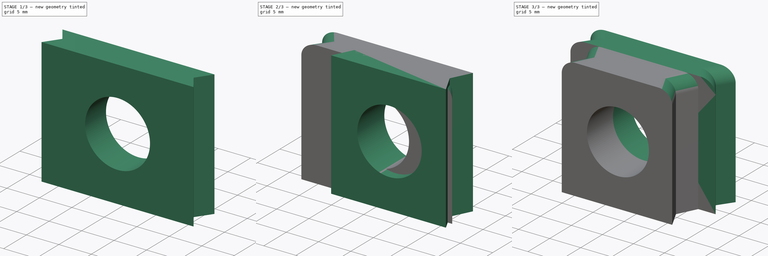
[diagram: build sequence overview — one tinted view per stage of 3, left to right]
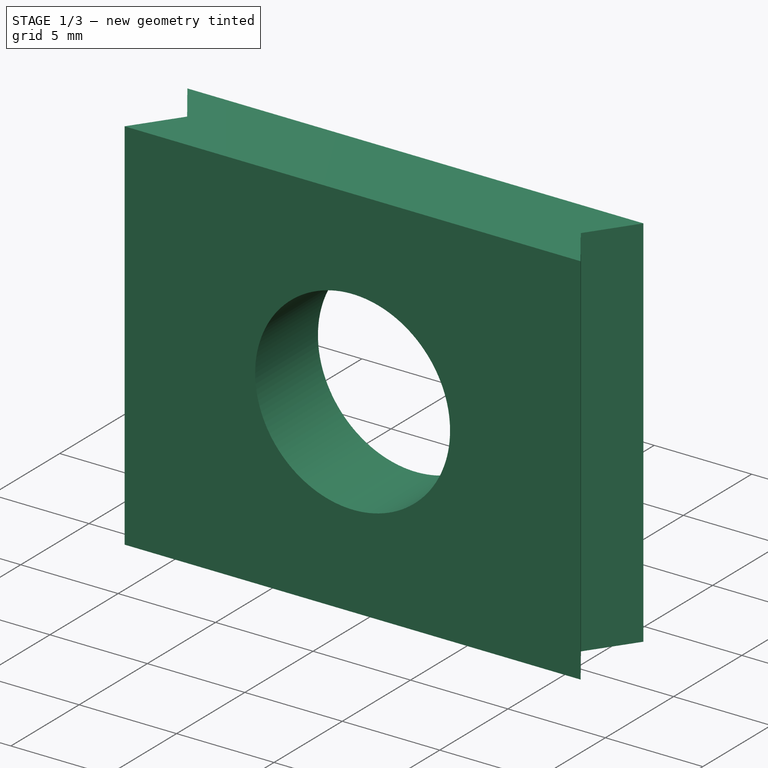
[diagram: stage 1 of 3 — iso view after this stage's code; geometry added in this stage tinted green]
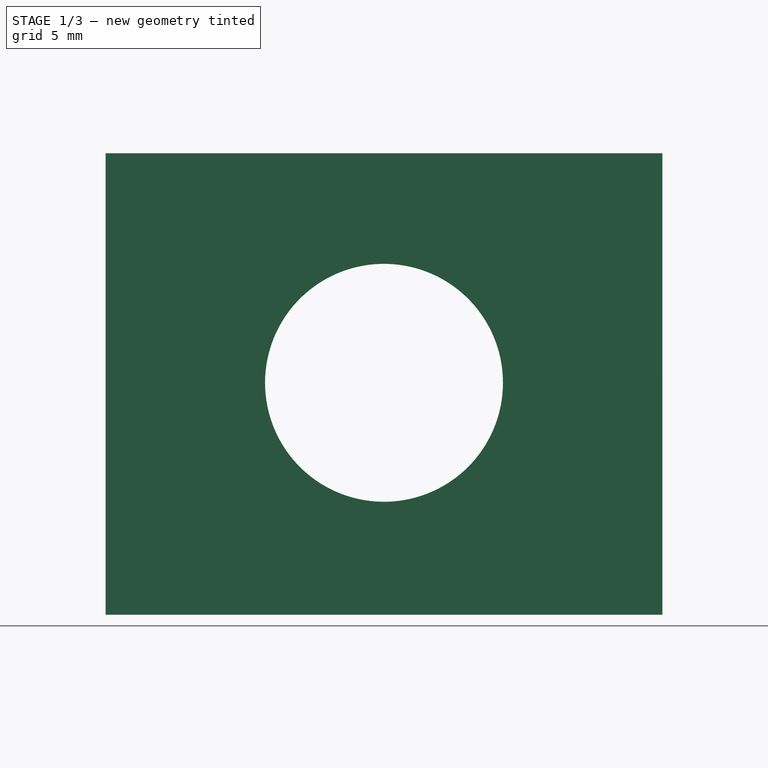
[diagram: stage 1 of 3 — front view after this stage's code; geometry added in this stage tinted green]
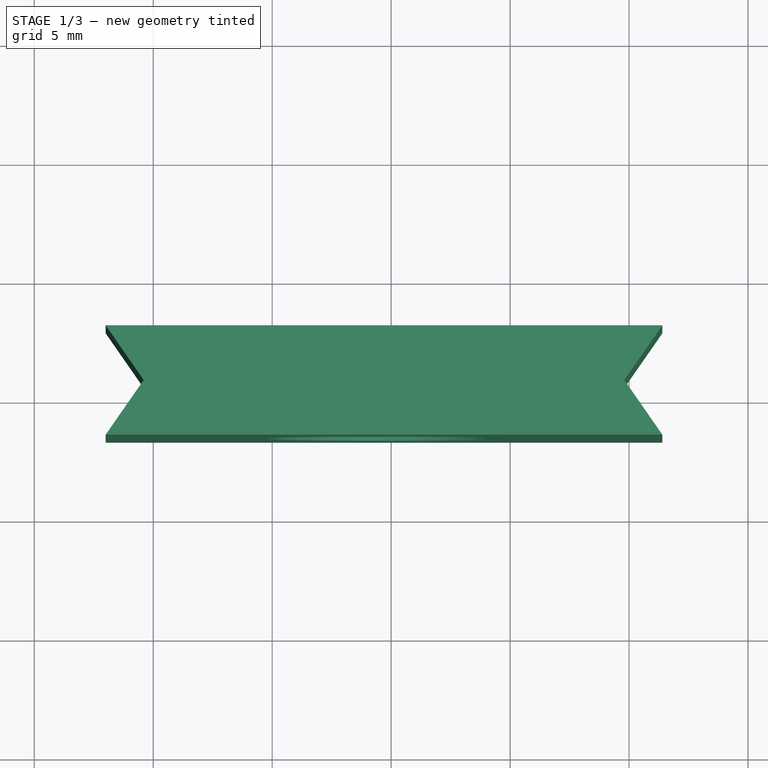
[diagram: stage 1 of 3 — top view after this stage's code; geometry added in this stage tinted green]
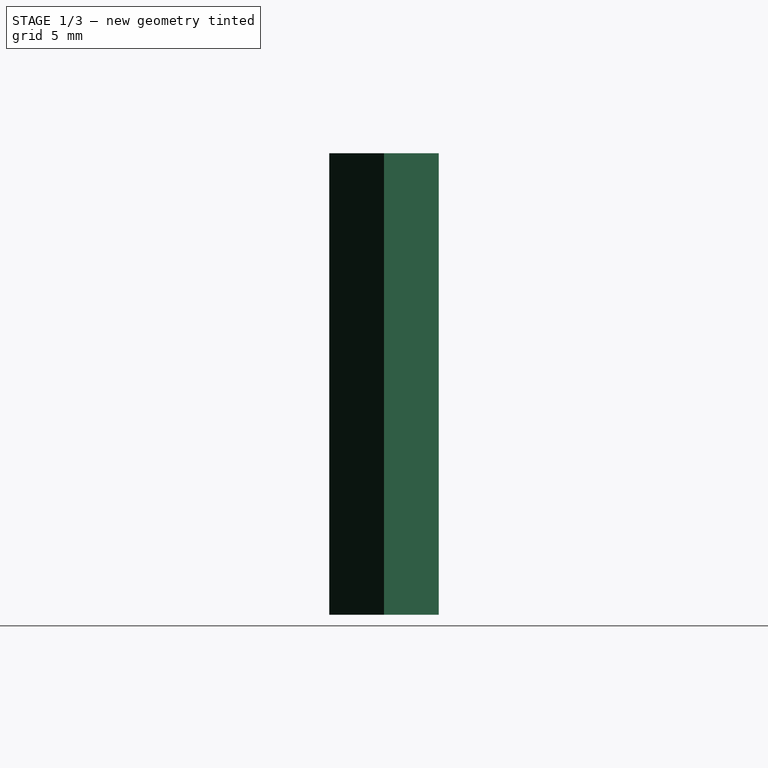
[diagram: stage 1 of 3 — right view after this stage's code; geometry added in this stage tinted green]
FCSTD DOCUMENT  (FreeCAD 0.20R29603 (Git))
Label: Connector Waakoshi Open Formicarium
License: All rights reserved
objects: Sketcher::SketchObject×4, PartDesign::Pad×2, PartDesign::Pocket×2, PartDesign::Fillet×2, PartDesign::Body×2, Part::Compound×1
note: 19 computed .brp shape members not serialized (recipe doc carries the construction recipe); baked Part::Feature solids carry a one-line shape summary decoded from their .brp

FEATURE [PartDesign::Body] Body001  label="Open Formicarium"
  Group = -> [Sketch019,Pad003,Sketch,Pocket,Fillet]
  Origin = -> Origin001
  Tip = -> Fillet
FEATURE [Sketcher::SketchObject] Sketch021
  FullyConstrained = true
  MapMode = 5
  Placement = pos=(0,0,20) rot=(0,0,1;0rad)
  sketch-geometry (6):
    g0: LineSegment StartX=-27 StartY=-17.07 StartZ=0 EndX=-3.6 EndY=-17.07 EndZ=0
    g1: LineSegment StartX=-3.6 StartY=-17.07 StartZ=0 EndX=-5.2 EndY=-19.37 EndZ=0
    g2: LineSegment StartX=-25.4 StartY=-19.37 StartZ=0 EndX=-27 EndY=-17.07 EndZ=0
    g3: LineSegment StartX=-25.4 StartY=-19.37 StartZ=0 EndX=-27 EndY=-21.67 EndZ=0
    g4: LineSegment StartX=-27 StartY=-21.67 StartZ=0 EndX=-3.6 EndY=-21.67 EndZ=0
    g5: LineSegment StartX=-3.6 StartY=-21.67 StartZ=0 EndX=-5.2 EndY=-19.37 EndZ=0
  constraints (18):
    c: Coincident(g0,g1)
    c: Coincident(g2,g0)
    c: Horizontal(g0)
    c: DistanceX(g0,g0) = 23.4  'X'
    c: DistanceX(g2,g1) = 20.2
    c: Equal(g2,g1)
    c: DistanceY(g2,g0) = 2.3  'Y'
    c: Horizontal(g1,g2)
    c: Coincident(g3,g4)
    c: Coincident(g4,g5)
    c: Coincident(g2,g3)
    c: Coincident(g5,g1)
    c: Equal(g2,g5)
    c: Equal(g0,g4)
    c: Equal(g3,g5)
    c: Horizontal(g4)
    c: DistanceY(g0,g-1) = 17.07
    c: DistanceX(g0,g-1) = 3.6
FEATURE [PartDesign::Pad] Pad004
  AllowMultiFace = false
  Direction = (0,0,1)
  Length = 19.4
  Length2 = 100
  Placement = pos=(0,0,20) rot=(0,0,1;0rad)
  Profile = -> Sketch021
  Reversed = true
  Type = 0
FEATURE [Sketcher::SketchObject] Sketch020
  ExternalGeometry = -> [Pad004]
  FullyConstrained = true
  MapMode = 5
  Placement = pos=(0,-21.67,20) rot=(1,0,0;1.5708rad)
  Support = -> [Pad004]
  expr: Constraints[0] = 5
  expr: Constraints[2] = <<Sketch021>>.Constraints.X / 2
  sketch-geometry (1):
    g0: Circle CenterX=-15.3 CenterY=-9.65 CenterZ=0 NormalX=0 NormalY=0 NormalZ=1 AngleXU=0 Radius=5
  constraints (4):
    c: Radius(g0) = 5
    c: DistanceY(g-3,g0) = 9.75
    c: DistanceX(g0,g-3) = 11.7
    c: DistanceX(g-3,g-3) = 23.4
FEATURE [PartDesign::Pocket] Pocket001
  AllowMultiFace = false
  BaseFeature = -> Pad004
  Direction = (0,1,-2e-16)
  Length = 5
  Length2 = 100
  Placement = pos=(0,0,20) rot=(0,0,1;0rad)
  Profile = -> Sketch020
  Type = 1
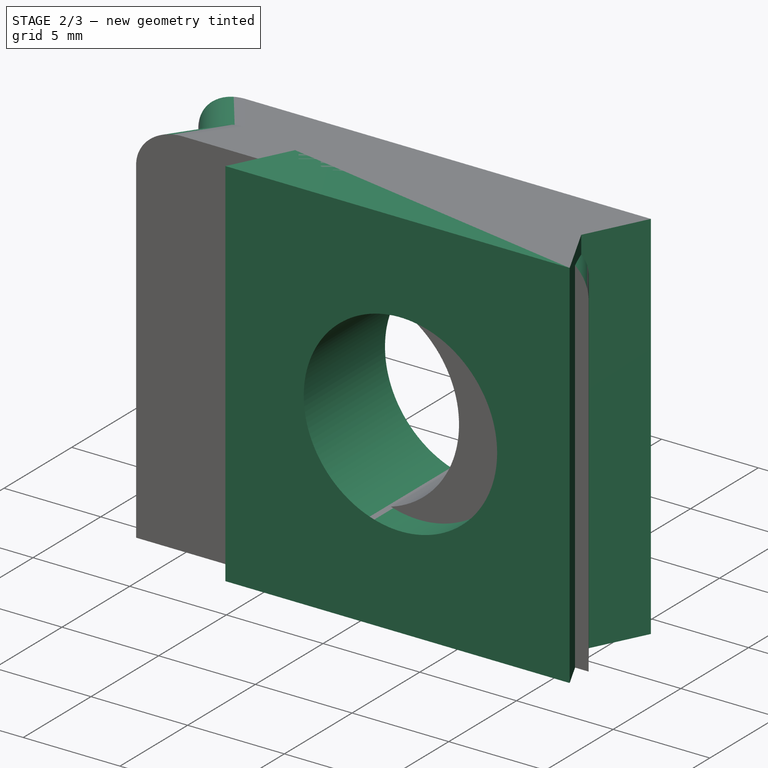
[diagram: stage 2 of 3 — iso view after this stage's code; geometry added in this stage tinted green]
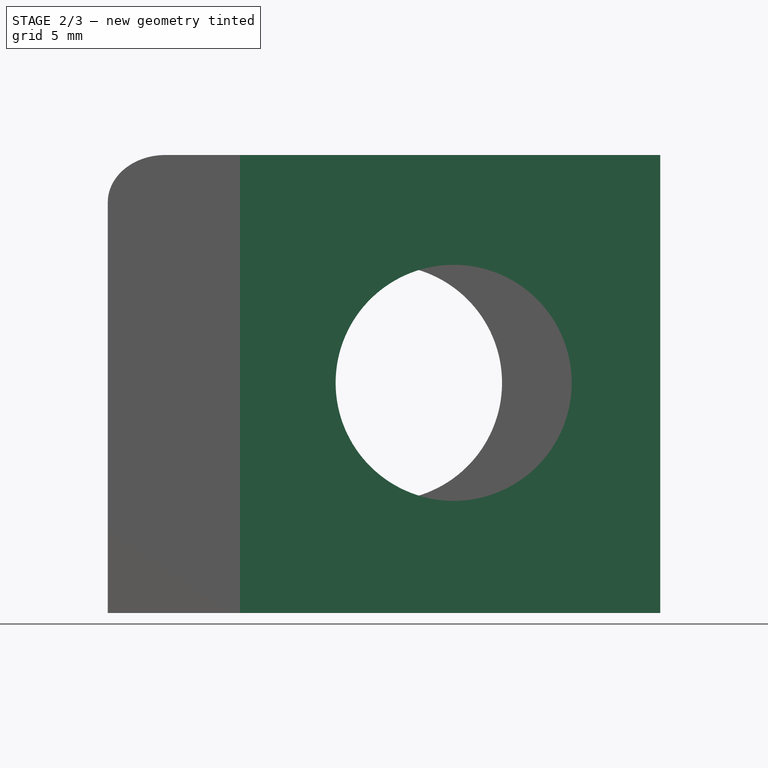
[diagram: stage 2 of 3 — front view after this stage's code; geometry added in this stage tinted green]
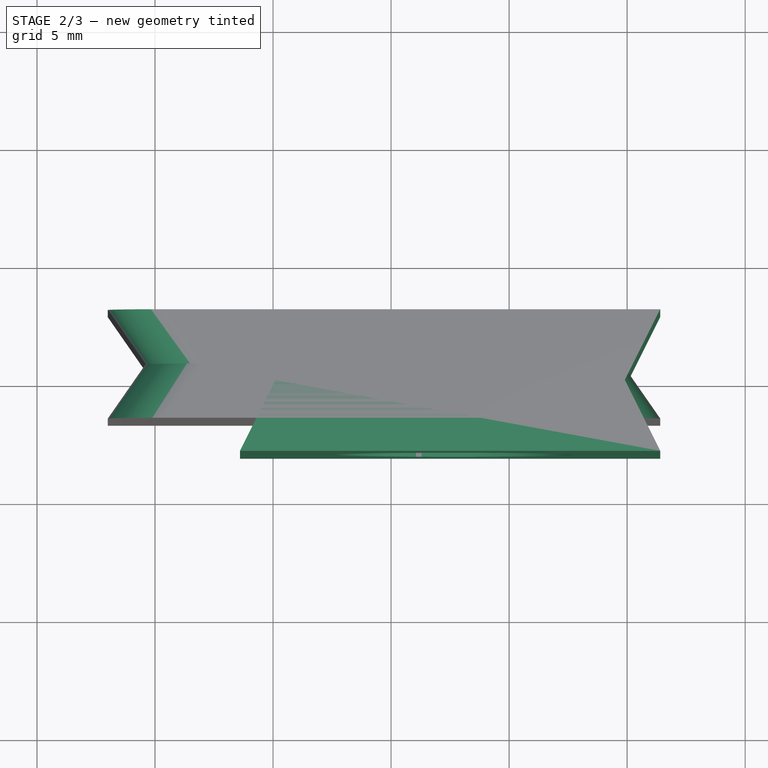
[diagram: stage 2 of 3 — top view after this stage's code; geometry added in this stage tinted green]
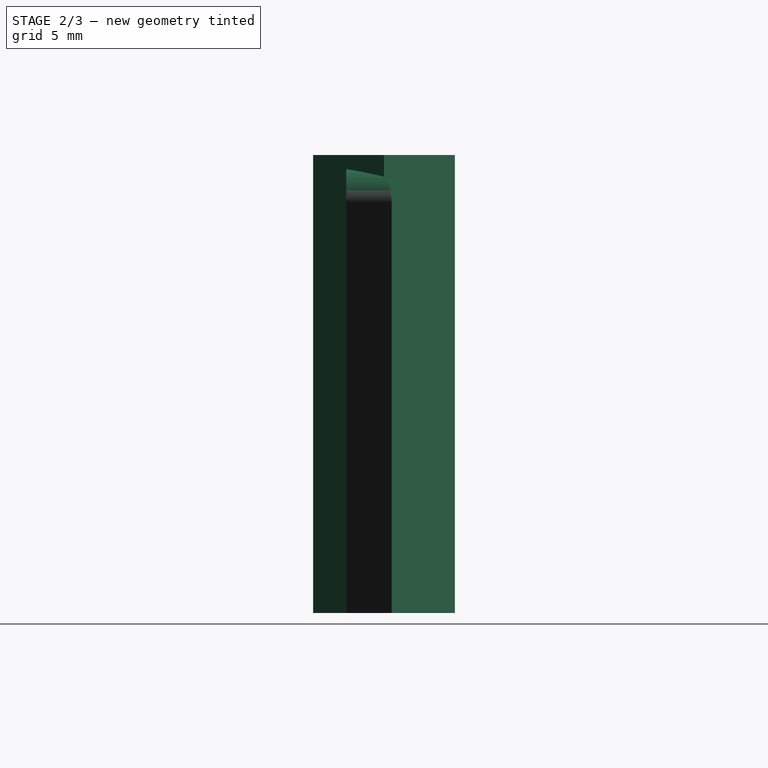
[diagram: stage 2 of 3 — right view after this stage's code; geometry added in this stage tinted green]
FEATURE [Sketcher::SketchObject] Sketch019
  FullyConstrained = true
  MapMode = 5
  Placement = pos=(0,0,20) rot=(0,0,1;0rad)
  sketch-geometry (6):
    g0: LineSegment StartX=-21.4 StartY=-17.07 StartZ=0 EndX=-3.6 EndY=-17.07 EndZ=0
    g1: LineSegment StartX=-3.6 StartY=-17.07 StartZ=0 EndX=-5.1 EndY=-20.07 EndZ=0
    g2: LineSegment StartX=-19.9 StartY=-20.07 StartZ=0 EndX=-21.4 EndY=-17.07 EndZ=0
    g3: LineSegment StartX=-19.9 StartY=-20.07 StartZ=0 EndX=-21.4 EndY=-23.07 EndZ=0
    g4: LineSegment StartX=-21.4 StartY=-23.07 StartZ=0 EndX=-3.6 EndY=-23.07 EndZ=0
    g5: LineSegment StartX=-3.6 StartY=-23.07 StartZ=0 EndX=-5.1 EndY=-20.07 EndZ=0
  constraints (18):
    c: Coincident(g0,g1)
    c: Coincident(g2,g0)
    c: Horizontal(g0)
    c: DistanceX(g0,g0) = 17.8  'X'
    c: DistanceX(g2,g1) = 14.8
    c: Equal(g2,g1)
    c: DistanceY(g2,g0) = 3  'Y'
    c: Horizontal(g1,g2)
    c: Coincident(g3,g4)
    c: Coincident(g4,g5)
    c: Coincident(g2,g3)
    c: Coincident(g5,g1)
    c: Equal(g2,g5)
    c: Equal(g0,g4)
    c: Equal(g3,g5)
    c: Horizontal(g4)
    c: DistanceY(g0,g-1) = 17.07
    c: DistanceX(g0,g-1) = 3.6
FEATURE [PartDesign::Pad] Pad003
  AllowMultiFace = false
  Direction = (0,0,1)
  Length = 19.4
  Length2 = 100
  Placement = pos=(0,0,20) rot=(0,0,1;0rad)
  Profile = -> Sketch019
  Reversed = true
  Type = 0
FEATURE [Sketcher::SketchObject] Sketch
  ExternalGeometry = -> [Pad003]
  FullyConstrained = true
  MapMode = 5
  Placement = pos=(0,-23.07,20) rot=(1,0,0;1.5708rad)
  Support = -> [Pad003]
  sketch-geometry (1):
    g0: Circle CenterX=-12.35 CenterY=-9.65 CenterZ=0 NormalX=0 NormalY=0 NormalZ=1 AngleXU=0 Radius=5
  constraints (4):
    c: Radius(g0) = 5
    c: DistanceY(g-3,g0) = 9.75
    c: DistanceX(g0,g-3) = 8.75
    c: DistanceX(g-3,g-3) = 17.8
FEATURE [PartDesign::Pocket] Pocket
  AllowMultiFace = false
  BaseFeature = -> Pad003
  Direction = (0,1,-2e-16)
  Length = 5
  Length2 = 100
  Placement = pos=(0,0,20) rot=(0,0,1;0rad)
  Profile = -> Sketch
  Type = 1
FEATURE [PartDesign::Fillet] Fillet001
  Base = -> Pocket001 [Edge12,Edge7,Edge9,Edge10]
  BaseFeature = -> Pocket001
  Placement = pos=(0,0,20) rot=(0,0,1;0rad)
  Radius = 2
  SupportTransform = false
  UseAllEdges = false
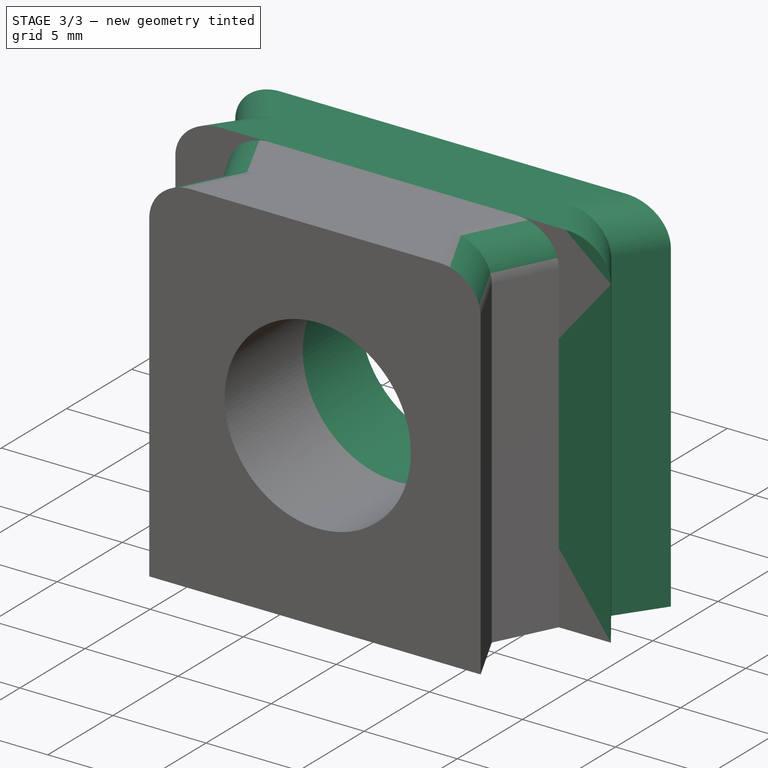
[diagram: stage 3 of 3 — iso view after this stage's code; geometry added in this stage tinted green]
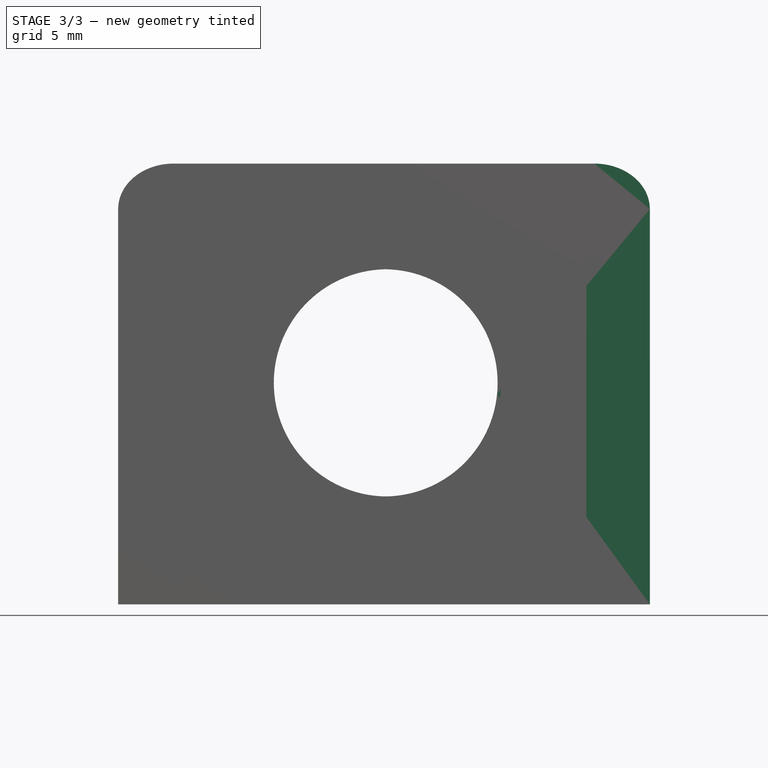
[diagram: stage 3 of 3 — front view after this stage's code; geometry added in this stage tinted green]
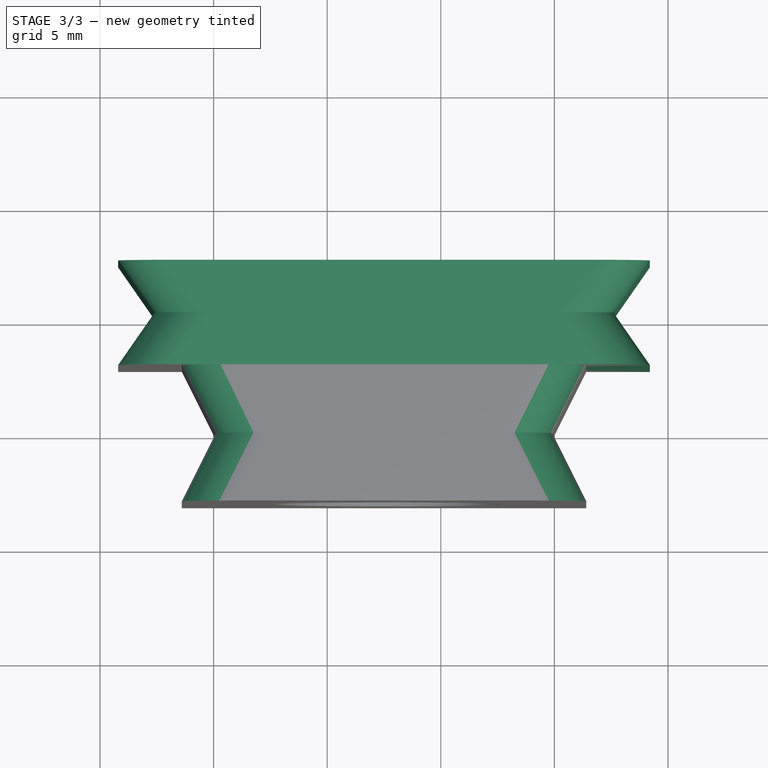
[diagram: stage 3 of 3 — top view after this stage's code; geometry added in this stage tinted green]
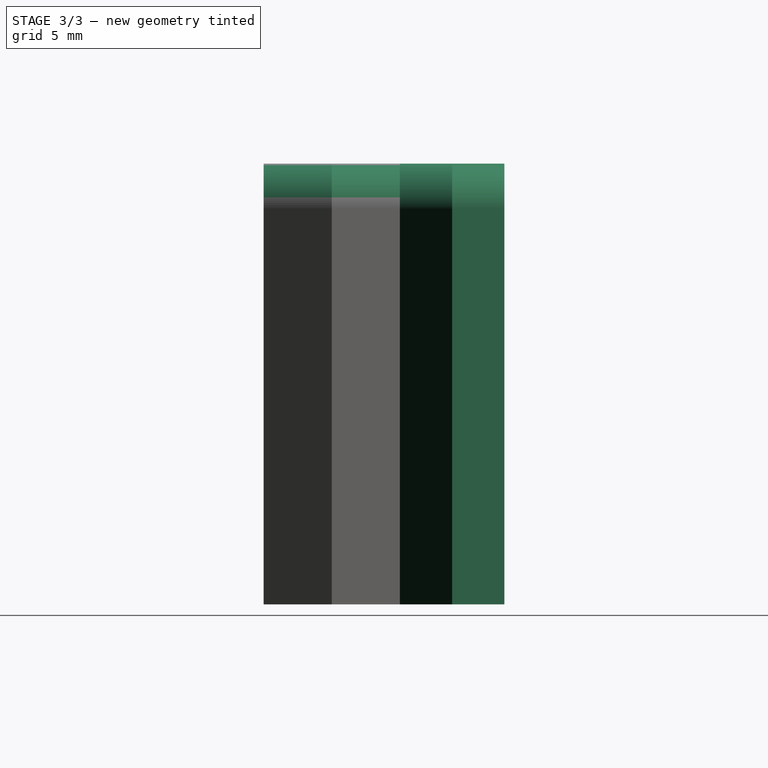
[diagram: stage 3 of 3 — right view after this stage's code; geometry added in this stage tinted green]
FEATURE [PartDesign::Fillet] Fillet
  Base = -> Pocket [Edge12,Edge7,Edge9,Edge10]
  BaseFeature = -> Pocket
  Placement = pos=(0,0,20) rot=(0,0,1;0rad)
  Radius = 2
  SupportTransform = false
  UseAllEdges = false
FEATURE [PartDesign::Body] Body002  label="Waakoshi"
  Group = -> [Sketch021,Pad004,Sketch020,Pocket001,Fillet001]
  Origin = -> Origin002
  Placement = pos=(2.8,4.6,0) rot=(0,0,1;0rad)
  Tip = -> Fillet001
  expr: .Placement.Base.x = (<<Sketch021>>.Constraints.X - <<Sketch019>>.Constraints.X) / 2
  expr: .Placement.Base.y = 2 * <<Sketch021>>.Constraints.Y
FEATURE [Part::Compound] Compound
  Links = -> [Body001,Body002]
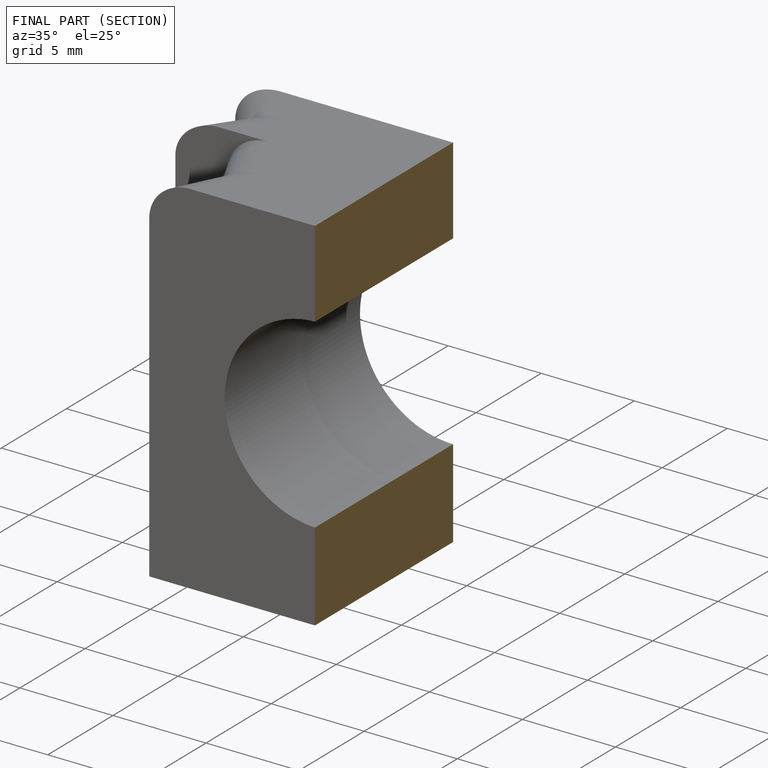
[diagram: finished part — half-section view (interior)]
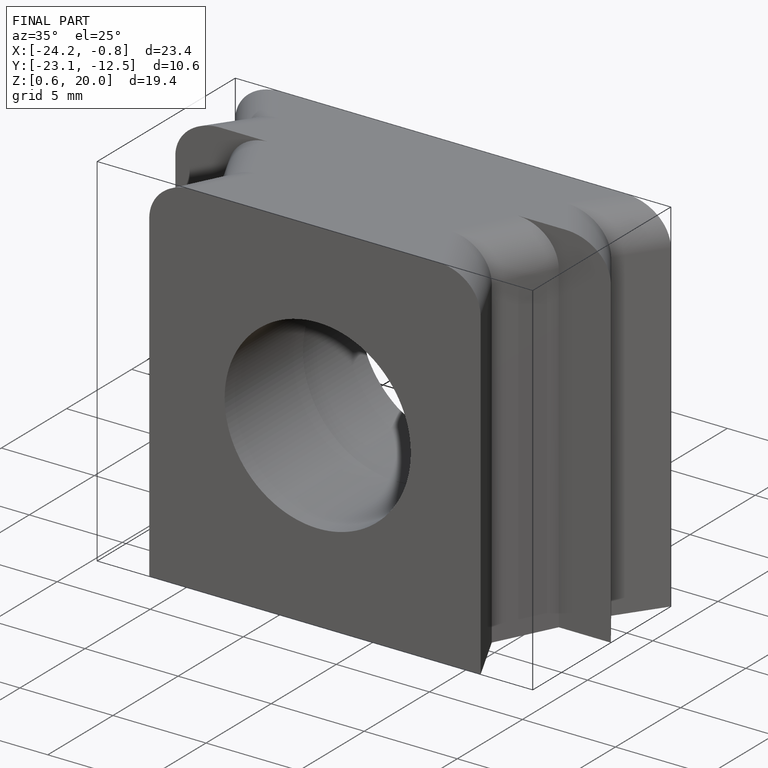
[diagram: finished part — iso view with bounding-box wireframe]
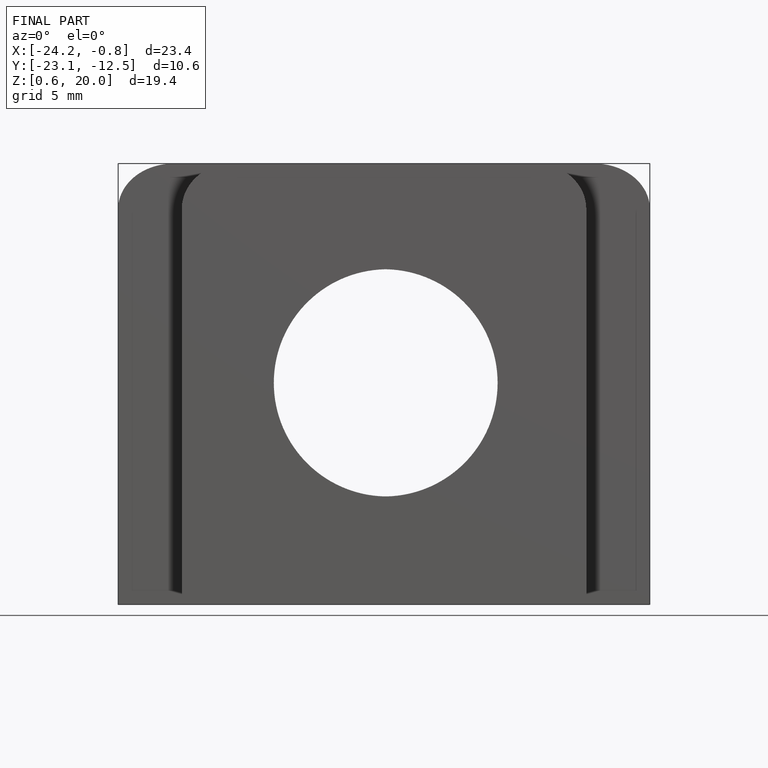
[diagram: finished part — front view with bounding-box wireframe]
